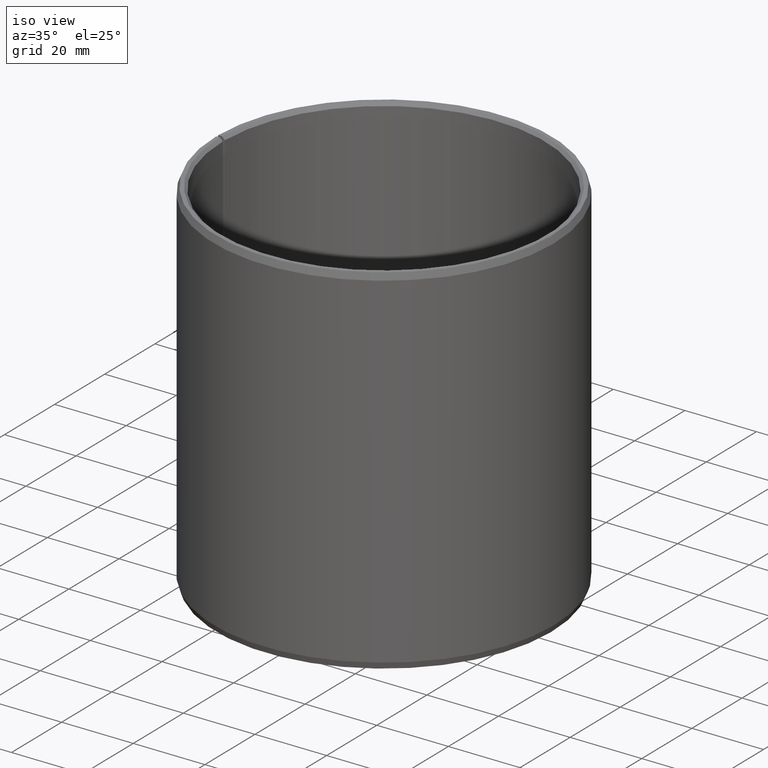
[diagram: clean part render]
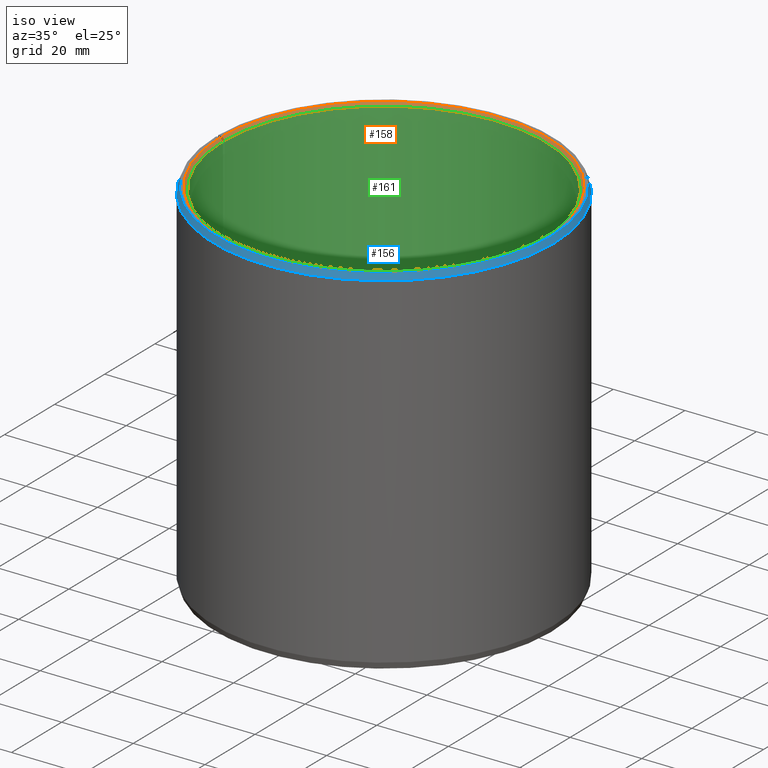
[diagram: same view with three faces highlighted in distinct colors, each labeled with its STEP entity id]
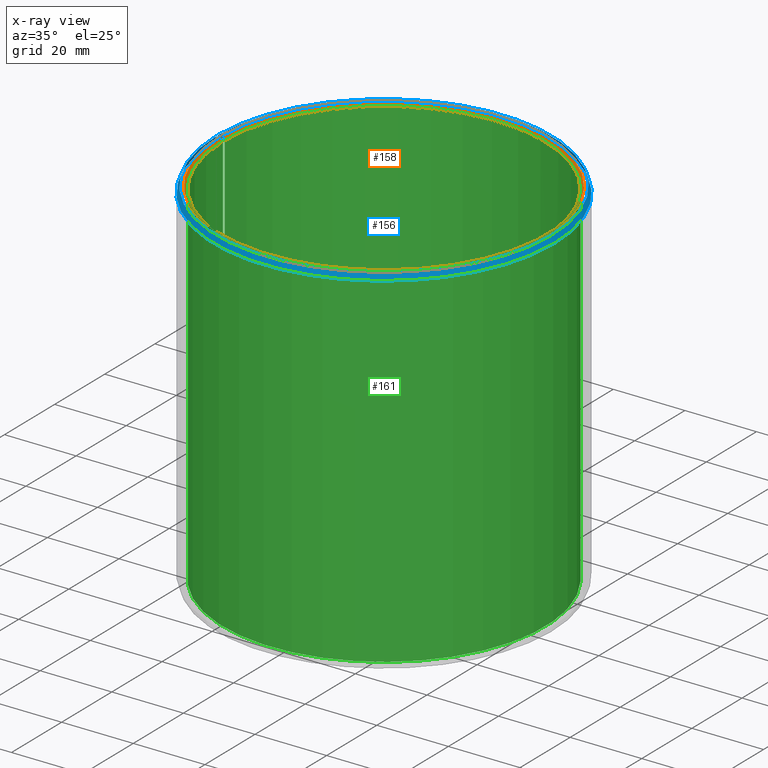
[diagram: x-ray of the same camera — body ghosted, the three highlighted faces saturated]
A machine part, iso view with three faces highlighted in distinct colors.
The next image is the same camera in x-ray (body ghosted, the three faces saturated) — at least one of them is partly hidden behind the body in this view.
Their STEP definitions:

[orange] entity #158 — the highlighted conical surface has half-angle 45 deg.
#158=ADVANCED_FACE('',(#176),#177,.F.);
#176=FACE_OUTER_BOUND('',#202,.T.);
#177=CONICAL_SURFACE('',#203,0.0458,0.785398163397457);
#202=EDGE_LOOP('',(#252,#253,#254,#255));
#203=AXIS2_PLACEMENT_3D('',#256,#257,#258);
#252=ORIENTED_EDGE('',*,*,#319,.T.);
#253=ORIENTED_EDGE('',*,*,#320,.F.);
#254=ORIENTED_EDGE('',*,*,#317,.F.);
#255=ORIENTED_EDGE('',*,*,#321,.T.);
#256=CARTESIAN_POINT('',(-1.38777878078145E-017,-6.93889390390723E-018,0.1));
#257=DIRECTION('',(-6.12323399573677E-017,0.0,1.0));
#258=DIRECTION('',(1.0,0.0,6.12323399573677E-017));
#317=EDGE_CURVE('',#354,#356,#357,.T.);
#319=EDGE_CURVE('',#359,#360,#361,.T.);
#320=EDGE_CURVE('',#356,#360,#362,.T.);
#321=EDGE_CURVE('',#354,#359,#363,.T.);
#354=VERTEX_POINT('',#406);
#356=VERTEX_POINT('',#409);
#357=CIRCLE('',#410,0.0458);
#359=VERTEX_POINT('',#413);
#360=VERTEX_POINT('',#414);
#361=CIRCLE('',#415,0.045);
#362=LINE('',#416,#417);
#363=LINE('',#418,#419);
#406=CARTESIAN_POINT('',(0.000799320214827573,0.0457930244381627,0.1));
#409=CARTESIAN_POINT('',(-1.38777878078145E-017,0.0458,0.1));
#410=AXIS2_PLACEMENT_3D('',#609,#610,#611);
#413=CARTESIAN_POINT('',(0.000785358289677747,0.0449931462820376,0.0992));
#414=CARTESIAN_POINT('',(-1.38777878078145E-017,0.045,0.0992));
#415=AXIS2_PLACEMENT_3D('',#613,#614,#615);
#416=CARTESIAN_POINT('',(-1.38777878078145E-017,0.0458,0.1));
#417=VECTOR('',#616,1.0);
#418=CARTESIAN_POINT('',(0.000799320214827573,0.0457930244381627,0.1));
#419=VECTOR('',#617,1.0);
#609=CARTESIAN_POINT('',(-1.38777878078145E-017,-6.93889390390723E-018,0.1));
#610=DIRECTION('',(6.12323399573677E-017,0.0,-1.0));
#611=DIRECTION('',(-1.0,0.0,-6.12323399573677E-017));
#613=CARTESIAN_POINT('',(-1.38777878078145E-017,-6.93889390390723E-018,0.0992));
#614=DIRECTION('',(6.12323399573677E-017,0.0,-1.0));
#615=DIRECTION('',(-1.0,0.0,-6.12323399573677E-017));
#616=DIRECTION('',(0.0,-0.707106781186551,-0.707106781186545));
#617=DIRECTION('',(-0.012340714939827,-0.706999085398827,-0.707106781186545));

[blue] entity #156 — the highlighted conical surface has half-angle 20 deg.
#156=ADVANCED_FACE('',(#172),#173,.T.);
#172=FACE_OUTER_BOUND('',#198,.T.);
#173=CONICAL_SURFACE('',#199,0.0475,0.349065850398878);
#198=EDGE_LOOP('',(#238,#239,#240,#241));
#199=AXIS2_PLACEMENT_3D('',#242,#243,#244);
#238=ORIENTED_EDGE('',*,*,#312,.T.);
#239=ORIENTED_EDGE('',*,*,#313,.F.);
#240=ORIENTED_EDGE('',*,*,#314,.F.);
#241=ORIENTED_EDGE('',*,*,#315,.T.);
#242=CARTESIAN_POINT('',(-1.21430643318376E-017,-6.93889390390723E-018,0.0982));
#243=DIRECTION('',(6.12323399573677E-017,-0.0,-1.0));
#244=DIRECTION('',(-1.0,0.0,-6.12323399573677E-017));
#312=EDGE_CURVE('',#346,#347,#348,.T.);
#313=EDGE_CURVE('',#349,#347,#350,.T.);
#314=EDGE_CURVE('',#351,#349,#352,.T.);
#315=EDGE_CURVE('',#351,#346,#353,.T.);
#346=VERTEX_POINT('',#396);
#347=VERTEX_POINT('',#397);
#348=CIRCLE('',#398,0.0468448535783208);
#349=VERTEX_POINT('',#399);
#350=LINE('',#400,#401);
#351=VERTEX_POINT('',#402);
#352=CIRCLE('',#403,0.0475);
#353=LINE('',#404,#405);
#396=CARTESIAN_POINT('',(0.000817555424143879,0.0468377188802227,0.1));
#397=CARTESIAN_POINT('',(-1.38777878078145E-017,0.0468448535783208,0.1));
#398=AXIS2_PLACEMENT_3D('',#600,#601,#602);
#399=CARTESIAN_POINT('',(-1.21430643318376E-017,0.0475,0.0982));
#400=CARTESIAN_POINT('',(-1.21430643318376E-017,0.0475,0.0982));
#401=VECTOR('',#603,1.0);
#402=CARTESIAN_POINT('',(0.000828989305770958,0.0474927655199286,0.0982));
#403=AXIS2_PLACEMENT_3D('',#604,#605,#606);
#404=CARTESIAN_POINT('',(0.000828989305770958,0.0474927655199286,0.0982));
#405=VECTOR('',#607,1.0);
#600=CARTESIAN_POINT('',(-1.38777878078145E-017,-6.93889390390723E-018,0.1));
#601=DIRECTION('',(6.12323399573677E-017,0.0,-1.0));
#602=DIRECTION('',(-1.0,0.0,-6.12323399573677E-017));
#603=DIRECTION('',(-9.05614916377493E-016,-0.342020143325677,0.939692620785906));
#604=CARTESIAN_POINT('',(-1.21430643318376E-017,-6.93889390390723E-018,0.0982));
#605=DIRECTION('',(6.12323399573677E-017,0.0,-1.0));
#606=DIRECTION('',(-1.0,0.0,-6.12323399573677E-017));
#607=DIRECTION('',(-0.00596907455105859,-0.341968052001237,0.939692620785905));

[green] entity #161 — the highlighted cylindrical surface (partial cylindrical patch) has radius 45 mm, axis along (-0, 0, -1).
#161=ADVANCED_FACE('',(#182,#183),#184,.F.);
#182=FACE_OUTER_BOUND('',#208,.T.);
#183=FACE_BOUND('',#209,.T.);
#184=CYLINDRICAL_SURFACE('',#210,0.045);
#208=EDGE_LOOP('',(#281,#282,#283,#284));
#209=EDGE_LOOP('',(#285));
#210=AXIS2_PLACEMENT_3D('',#286,#287,#288);
#281=ORIENTED_EDGE('',*,*,#304,.T.);
#282=ORIENTED_EDGE('',*,*,#322,.F.);
#283=ORIENTED_EDGE('',*,*,#319,.F.);
#284=ORIENTED_EDGE('',*,*,#325,.T.);
#285=ORIENTED_EDGE('',*,*,#326,.T.);
#286=CARTESIAN_POINT('',(-6.93889390390723E-018,-6.93889390390723E-018,0.0));
#287=DIRECTION('',(6.12323399573677E-017,0.0,-1.0));
#288=DIRECTION('',(-1.0,0.0,-6.12323399573677E-017));
#304=EDGE_CURVE('',#333,#331,#334,.T.);
#319=EDGE_CURVE('',#359,#360,#361,.T.);
#322=EDGE_CURVE('',#360,#331,#364,.T.);
#325=EDGE_CURVE('',#359,#333,#367,.T.);
#326=EDGE_CURVE('',#368,#368,#369,.T.);
#331=VERTEX_POINT('',#375);
#333=VERTEX_POINT('',#378);
#334=CIRCLE('',#379,0.045);
#359=VERTEX_POINT('',#413);
#360=VERTEX_POINT('',#414);
#361=CIRCLE('',#415,0.045);
#364=LINE('',#420,#421);
#367=LINE('',#426,#427);
#368=VERTEX_POINT('',#428);
#369=B_SPLINE_CURVE_WITH_KNOTS('',3,(#429,#430,#431,#432,#433,#434,#435,#436,#437,#438,#439,#440,#441,#442,#443,#444,#445,#446,#447,#448,#449,#450,#451,#452,#453,#454,#455,#456,#457,#458,#459,#460,#461,#462,#463,#464,#465,#466,#467,#468,#469,#470,#471,#472,#473,#474,#475,#476,#477,#478,#479,#480,#481,#482,#483,#484,#485,#486,#487,#488,#489,#490,#491,#492,#493,#494,#495,#496,#497,#498,#499,#500,#501,#502,#503,#504),.UNSPECIFIED.,.T.,.F.,(2,2,2,2,2,2,2,2,2,2,2,2,2,2,2,2,2,2,2,2,2,2,2,2,2,2,2,2,2,2,2,2,2,2,2,2,2,2,2,2),(-0.000977655942804512,0.0,0.000977655942804524,0.00146648391420678,0.00195531188560903,0.00293296782841351,0.00391062377121799,0.00488827971402247,0.00586593565682695,0.00684359159963143,0.00782124754243591,0.00879890348524039,0.00977655942804487,0.0102653873994471,0.0107542153708493,0.0117318713136538,0.0127095272564583,0.0131983552278605,0.0136871831992628,0.0146648391420673,0.0156424950848717,0.0166201510276762,0.0175978069704807,0.0185754629132852,0.0195531188560896,0.0205307747988941,0.0215084307416986,0.0219972587131008,0.0224860866845031,0.0234637426273075,0.024441398570112,0.0249302265415143,0.0254190545129165,0.0263967104557211,0.0273743663985256,0.0283520223413301,0.0293296782841346,0.0303073342269391,0.0312849901697436,0.0322626461125481),.UNSPECIFIED.);
#375=CARTESIAN_POINT('',(-6.93889390390723E-018,0.045,0.0008));
#378=CARTESIAN_POINT('',(0.000785358289677754,0.0449931462820376,0.0008));
#379=AXIS2_PLACEMENT_3D('',#586,#587,#588);
#413=CARTESIAN_POINT('',(0.000785358289677747,0.0449931462820376,0.0992));
#414=CARTESIAN_POINT('',(-1.38777878078145E-017,0.045,0.0992));
#415=AXIS2_PLACEMENT_3D('',#613,#614,#615);
#420=CARTESIAN_POINT('',(-1.38777878078145E-017,0.045,0.0992));
#421=VECTOR('',#618,1.0);
#426=CARTESIAN_POINT('',(0.000785358289677747,0.0449931462820376,0.0992));
#427=VECTOR('',#621,1.0);
#428=CARTESIAN_POINT('',(0.0357584966747437,-0.0273190394333759,0.05));
#429=CARTESIAN_POINT('',(0.0357584966747437,-0.0273190394333759,0.0503305974411783));
#430=CARTESIAN_POINT('',(0.0357584966747437,-0.0273190394333759,0.0496694025588216));
#431=CARTESIAN_POINT('',(0.0357783577216167,-0.0272930982033185,0.0493443810431029));
#432=CARTESIAN_POINT('',(0.0358364374359816,-0.0272167370306392,0.0488648587049675));
#433=CARTESIAN_POINT('',(0.0358605423002432,-0.0271849922074838,0.0487063627733718));
#434=CARTESIAN_POINT('',(0.0359183471041453,-0.0271085712772662,0.0483921189122726));
#435=CARTESIAN_POINT('',(0.0359521978624818,-0.0270636924681726,0.0482359989971261));
#436=CARTESIAN_POINT('',(0.0360658270186019,-0.0269123028758919,0.0477819641588702));
#437=CARTESIAN_POINT('',(0.0361580810400802,-0.0267885492379145,0.0474948806336275));
#438=CARTESIAN_POINT('',(0.0363738130281186,-0.0264948848000638,0.0469515639383111));
#439=CARTESIAN_POINT('',(0.0364983073565944,-0.0263235066399123,0.0466945160926545));
#440=CARTESIAN_POINT('',(0.0367668328132445,-0.0259471279065885,0.0462336903275493));
#441=CARTESIAN_POINT('',(0.0369118630924153,-0.0257408100611493,0.0460268104903476));
#442=CARTESIAN_POINT('',(0.0372223004852439,-0.0252898257436383,0.0456612832928446));
#443=CARTESIAN_POINT('',(0.0373852337267297,-0.0250486510777766,0.0455061079599379));
#444=CARTESIAN_POINT('',(0.03771700621014,-0.0245462433818837,0.0452566610304996));
#445=CARTESIAN_POINT('',(0.0378882992403754,-0.0242812891842692,0.0451605416017369));
#446=CARTESIAN_POINT('',(0.0382327769748655,-0.0237351846120592,0.0450320027268189));
#447=CARTESIAN_POINT('',(0.0384030084960218,-0.0234588031910716,0.0450001803006492));
#448=CARTESIAN_POINT('',(0.0387392149597757,-0.0228993391390068,0.0449998212126562));
#449=CARTESIAN_POINT('',(0.0389068418490159,-0.0226132830493326,0.0450323313231987));
#450=CARTESIAN_POINT('',(0.0392252867047437,-0.0220562869917904,0.0451599796300221));
#451=CARTESIAN_POINT('',(0.0393771385892357,-0.0217837744276658,0.0452544240856155));
#452=CARTESIAN_POINT('',(0.0395945403336513,-0.0213844650088489,0.0454423251495541));
#453=CARTESIAN_POINT('',(0.0396656074970202,-0.021252307576708,0.0455131638464687));
#454=CARTESIAN_POINT('',(0.0398016465826718,-0.0209964264757305,0.0456678698631165));
#455=CARTESIAN_POINT('',(0.0398668505669601,-0.0208722932399154,0.0457518381889371));
#456=CARTESIAN_POINT('',(0.0400545085469077,-0.0205112150286391,0.0460231424210263));
#457=CARTESIAN_POINT('',(0.040169106483187,-0.0202854065421928,0.0462297573041049));
#458=CARTESIAN_POINT('',(0.0403780442743171,-0.0198662622257166,0.046696260202933));
#459=CARTESIAN_POINT('',(0.0404690038418624,-0.019679756093644,0.0469485311669764));
#460=CARTESIAN_POINT('',(0.0405873070276077,-0.0194339593549849,0.0473543953099624));
#461=CARTESIAN_POINT('',(0.0406236928824655,-0.0193577281014116,0.0474942937508464));
#462=CARTESIAN_POINT('',(0.0406904274462146,-0.0192170542722187,0.0477835410573333));
#463=CARTESIAN_POINT('',(0.0407208184453473,-0.0191525174882787,0.0479333644041079));
#464=CARTESIAN_POINT('',(0.0408011401875014,-0.0189811191290419,0.0483874062729034));
#465=CARTESIAN_POINT('',(0.0408411078497733,-0.0188946571153717,0.0486990546760645));
#466=CARTESIAN_POINT('',(0.0408950894334064,-0.0187775349324124,0.0493401628748444));
#467=CARTESIAN_POINT('',(0.0409088265291694,-0.0187474774842154,0.0496717260970863));
#468=CARTESIAN_POINT('',(0.0409089280301403,-0.0187472559976024,0.0503245650567024));
#469=CARTESIAN_POINT('',(0.0408957381163527,-0.0187761216132207,0.0506491604844053));
#470=CARTESIAN_POINT('',(0.0408418843576675,-0.018892978087921,0.0512946184872106));
#471=CARTESIAN_POINT('',(0.0408014160234292,-0.0189805192950226,0.0516102539686762));
#472=CARTESIAN_POINT('',(0.0406952128274478,-0.0192071683273303,0.0522121487394339));
#473=CARTESIAN_POINT('',(0.0406286680576426,-0.0193479954279689,0.0525030220510135));
#474=CARTESIAN_POINT('',(0.0404697095588895,-0.0196783181049076,0.0530497213449381));
#475=CARTESIAN_POINT('',(0.0403787620640096,-0.0198647657128848,0.0533014496601335));
#476=CARTESIAN_POINT('',(0.0401727303149316,-0.0202781922688756,0.0537628248130964));
#477=CARTESIAN_POINT('',(0.0400562119164868,-0.0205078972674864,0.0539740822081233));
#478=CARTESIAN_POINT('',(0.0398054117304022,-0.0209905493116648,0.0543372955111929));
#479=CARTESIAN_POINT('',(0.0396707614415069,-0.0212443494795505,0.0544911143776957));
#480=CARTESIAN_POINT('',(0.0394536382886212,-0.0216433211483405,0.0546797843869064));
#481=CARTESIAN_POINT('',(0.0393783028851212,-0.0217801277364787,0.0547358266868749));
#482=CARTESIAN_POINT('',(0.0392252028176919,-0.0220546631404928,0.0548313889731701));
#483=CARTESIAN_POINT('',(0.0391472783861288,-0.0221927047298193,0.0548711544147326));
#484=CARTESIAN_POINT('',(0.038909316820171,-0.0226090083296816,0.0549669428183051));
#485=CARTESIAN_POINT('',(0.0387451135674065,-0.0228894166698385,0.0549996895846428));
#486=CARTESIAN_POINT('',(0.0384047467854782,-0.0234560151172361,0.0550003060658118));
#487=CARTESIAN_POINT('',(0.0382340980950907,-0.0237330154768232,0.0549681228317207));
#488=CARTESIAN_POINT('',(0.0379782095291426,-0.0241387897615555,0.0548731865923983));
#489=CARTESIAN_POINT('',(0.0378929034281056,-0.0242724656329824,0.0548337061930671));
#490=CARTESIAN_POINT('',(0.0377223752722336,-0.0245366485473634,0.0547387302749971));
#491=CARTESIAN_POINT('',(0.0376369097083665,-0.0246675090020806,0.054682965725444));
#492=CARTESIAN_POINT('',(0.0373863784756464,-0.0250469677911234,0.0544950501512112));
#493=CARTESIAN_POINT('',(0.0372253539744323,-0.0252853155271545,0.0543416980306018));
#494=CARTESIAN_POINT('',(0.0369166043554603,-0.0257339946897475,0.0539793708688259));
#495=CARTESIAN_POINT('',(0.0367683225626511,-0.0259450183310532,0.0537685696625023));
#496=CARTESIAN_POINT('',(0.0364996200259119,-0.0263216879822304,0.0533080301658648));
#497=CARTESIAN_POINT('',(0.0363774616161313,-0.0264898859222839,0.0530566753315461));
#498=CARTESIAN_POINT('',(0.0361598994742772,-0.0267861053499551,0.0525106250876529));
#499=CARTESIAN_POINT('',(0.0360665119811126,-0.0269113823861815,0.0522200397058883));
#500=CARTESIAN_POINT('',(0.0359156632710771,-0.0271123757759739,0.0516187408305854));
#501=CARTESIAN_POINT('',(0.035857115664049,-0.0271895473920496,0.0513039864895104));
#502=CARTESIAN_POINT('',(0.0357783614476023,-0.0272930958898807,0.050657498365905));
#503=CARTESIAN_POINT('',(0.0357584966747437,-0.0273190394333759,0.0503305974411783));
#504=CARTESIAN_POINT('',(0.0357584966747437,-0.0273190394333759,0.0496694025588216));
#586=CARTESIAN_POINT('',(-6.93889390390723E-018,-6.93889390390723E-018,0.0008));
#587=DIRECTION('',(6.12323399573677E-017,0.0,-1.0));
#588=DIRECTION('',(-1.0,0.0,-6.12323399573677E-017));
#613=CARTESIAN_POINT('',(-1.38777878078145E-017,-6.93889390390723E-018,0.0992));
#614=DIRECTION('',(6.12323399573677E-017,0.0,-1.0));
#615=DIRECTION('',(-1.0,0.0,-6.12323399573677E-017));
#618=DIRECTION('',(7.05172144706019E-017,2.82068857882408E-016,-1.0));
#621=DIRECTION('',(7.54385806903054E-017,2.81863854025397E-016,-1.0));